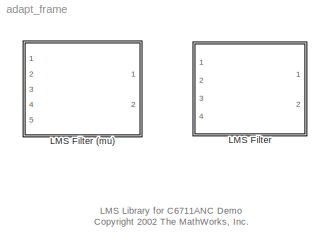
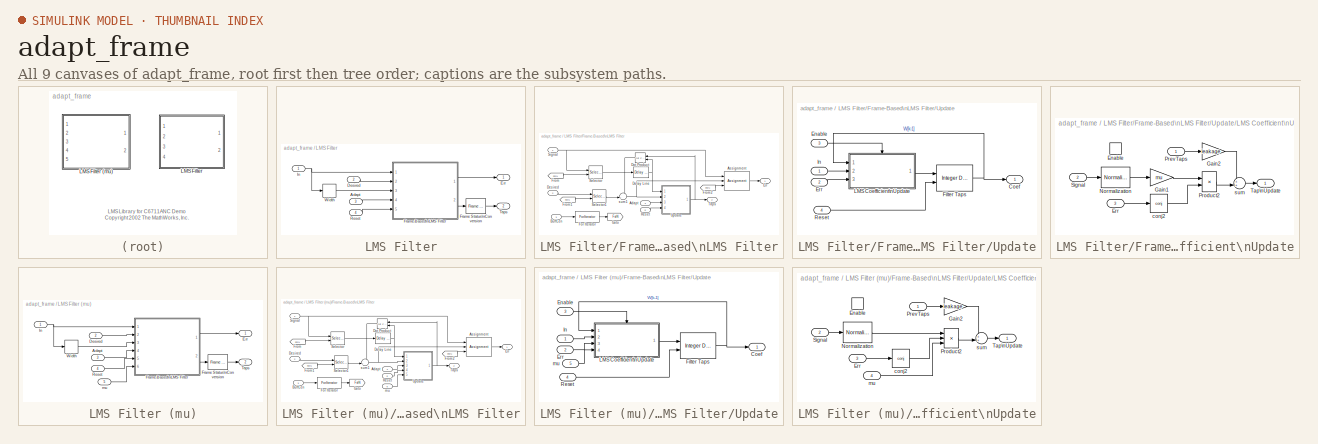
[diagram: thumbnail index - all 9 canvases of the model, root first then tree order]
MODEL adapt_frame
KIND library
BLOCK [SubSystem] LMS Filter
  MaskCallbackString = ||
  MaskDescription = Frame-based implementation of a normalized LMS filter.
  MaskDisplay = disp('nLMS\\nFrame')
  MaskEnableString = on,on,on
  MaskIconFrame = on
  MaskIconOpaque = off
  MaskIconRotate = none
  MaskIconUnits = autoscale
  MaskPromptString = Filter Length|Step Size|Leakage
  MaskStyleString = edit,edit,edit
  MaskToolTipString = on,on,on
  MaskTunableValueString = off,on,on
  MaskType = LMS Adaptive Filter
  MaskValueString = 32|0.2|1.0
  MaskVarAliasString = ,,
  MaskVariables = N=@1;mu=@2;leakage=@3;
  MaskVisibilityString = on,on,on
  Ports = [4, 2]
  TreatAsAtomicUnit = off
BLOCK [SubSystem] LMS Filter (mu)
  MaskCallbackString = |
  MaskDescription = Frame-based implementation of a normalized LMS filter.
  MaskDisplay = disp('nLMS\\nFrame')
  MaskEnableString = on,on
  MaskIconFrame = on
  MaskIconOpaque = off
  MaskIconRotate = none
  MaskIconUnits = autoscale
  MaskPromptString = Filter Length|Leakage
  MaskStyleString = edit,edit
  MaskToolTipString = on,on
  MaskTunableValueString = off,on
  MaskType = LMS Adaptive Filter
  MaskValueString = 32|1.0
  MaskVarAliasString = ,
  MaskVariables = N=@1;leakage=@2;
  MaskVisibilityString = on,on
  Ports = [5, 2]
  TreatAsAtomicUnit = off
BLOCK [Inport] LMS Filter (mu)/Adapt
  Port = 3
BLOCK [Inport] LMS Filter (mu)/Desired
  Port = 2
BLOCK [Outport] LMS Filter (mu)/Err
BLOCK [Reference] LMS Filter (mu)/Frame Status\nConversion  REF=dspsigattribs/Frame Status\nConversion
  Ports = [1, 1]
  SourceBlock = dspsigattribs/Frame Status\nConversion
  SourceType = Frame Status Conversion
  growRefPort = off
  outframe = Sample-based
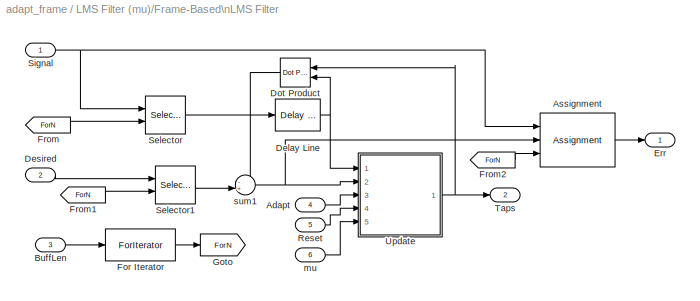
BLOCK [SubSystem] LMS Filter (mu)/Frame-Based\nLMS Filter
  Ports = [6, 2]
  TreatAsAtomicUnit = on
BLOCK [Inport] LMS Filter (mu)/Frame-Based\nLMS Filter/Adapt
  Port = 4
BLOCK [Assignment] LMS Filter (mu)/Frame-Based\nLMS Filter/Assignment
  ColumnSrc = External
  ElementSrc = External
  Ports = [3, 1]
  Rows = -1
BLOCK [Inport] LMS Filter (mu)/Frame-Based\nLMS Filter/BuffLen
  Port = 3
BLOCK [Reference] LMS Filter (mu)/Frame-Based\nLMS Filter/Delay Line  REF=dspbuff3/Delay Line
  Ports = [1, 1]
  SourceBlock = dspbuff3/Delay Line
  SourceType = Delay Line
  ic = 0
  siz = N
BLOCK [Inport] LMS Filter (mu)/Frame-Based\nLMS Filter/Desired
  Port = 2
BLOCK [Reference] LMS Filter (mu)/Frame-Based\nLMS Filter/Dot Product  REF=simulink/Math\nOperations/Dot Product
  Ports = [2, 1]
  SourceBlock = simulink/Math\nOperations/Dot Product
  SourceType = Dot Product
BLOCK [Outport] LMS Filter (mu)/Frame-Based\nLMS Filter/Err
BLOCK [ForIterator] LMS Filter (mu)/Frame-Based\nLMS Filter/For Iterator
  IterationSource = external
  NumIters = 4
  Ports = [1, 1]
BLOCK [From] LMS Filter (mu)/Frame-Based\nLMS Filter/From
  GotoTag = ForN
BLOCK [From] LMS Filter (mu)/Frame-Based\nLMS Filter/From1
  GotoTag = ForN
BLOCK [From] LMS Filter (mu)/Frame-Based\nLMS Filter/From2
  GotoTag = ForN
BLOCK [Goto] LMS Filter (mu)/Frame-Based\nLMS Filter/Goto
  GotoTag = ForN
  TagVisibility = local
BLOCK [Inport] LMS Filter (mu)/Frame-Based\nLMS Filter/Reset
  Port = 5
BLOCK [Selector] LMS Filter (mu)/Frame-Based\nLMS Filter/Selector
  ElementSrc = External
  Elements = [1 3]
  Ports = [2, 1]
BLOCK [Selector] LMS Filter (mu)/Frame-Based\nLMS Filter/Selector1
  ElementSrc = External
  Elements = [1 3]
  Ports = [2, 1]
BLOCK [Inport] LMS Filter (mu)/Frame-Based\nLMS Filter/Signal
BLOCK [Outport] LMS Filter (mu)/Frame-Based\nLMS Filter/Taps
  Port = 2
BLOCK [SubSystem] LMS Filter (mu)/Frame-Based\nLMS Filter/Update
  Ports = [5, 1]
  TreatAsAtomicUnit = off
BLOCK [Outport] LMS Filter (mu)/Frame-Based\nLMS Filter/Update/Coef
BLOCK [Inport] LMS Filter (mu)/Frame-Based\nLMS Filter/Update/Enable
  Port = 3
BLOCK [Inport] LMS Filter (mu)/Frame-Based\nLMS Filter/Update/Err
  Port = 2
BLOCK [Reference] LMS Filter (mu)/Frame-Based\nLMS Filter/Update/Filter Taps  REF=dspsigops/Integer Delay
  Ports = [2, 1]
  SourceBlock = dspsigops/Integer Delay
  SourceType = Integer Delay
  delay = N
  ic = 0
  reset_popup = Either edge
BLOCK [Inport] LMS Filter (mu)/Frame-Based\nLMS Filter/Update/In
BLOCK [SubSystem] LMS Filter (mu)/Frame-Based\nLMS Filter/Update/LMS Coefficient\nUpdate
  Ports = [4, 1, 1]
  TreatAsAtomicUnit = off
BLOCK [EnablePort] LMS Filter (mu)/Frame-Based\nLMS Filter/Update/LMS Coefficient\nUpdate/Enable
  Ports = []
BLOCK [Inport] LMS Filter (mu)/Frame-Based\nLMS Filter/Update/LMS Coefficient\nUpdate/Err
  Port = 3
BLOCK [Gain] LMS Filter (mu)/Frame-Based\nLMS Filter/Update/LMS Coefficient\nUpdate/Gain2
  Gain = leakage
BLOCK [Reference] LMS Filter (mu)/Frame-Based\nLMS Filter/Update/LMS Coefficient\nUpdate/Normalization  REF=dspmathops/Normalization
  Bias = 1e-10
  NormType = Squared 2-norm
  Ports = [1, 1]
  SourceBlock = dspmathops/Normalization
  SourceType = Normalization
BLOCK [Inport] LMS Filter (mu)/Frame-Based\nLMS Filter/Update/LMS Coefficient\nUpdate/PrevTaps
BLOCK [Product] LMS Filter (mu)/Frame-Based\nLMS Filter/Update/LMS Coefficient\nUpdate/Product2
  Inputs = 3
  Ports = [3, 1]
BLOCK [Inport] LMS Filter (mu)/Frame-Based\nLMS Filter/Update/LMS Coefficient\nUpdate/Signal
  Port = 2
BLOCK [Outport] LMS Filter (mu)/Frame-Based\nLMS Filter/Update/LMS Coefficient\nUpdate/Tap\nUpdate
  InitialOutput = 0
BLOCK [Math] LMS Filter (mu)/Frame-Based\nLMS Filter/Update/LMS Coefficient\nUpdate/conj2
  Operator = conj
  Ports = [1, 1]
BLOCK [Inport] LMS Filter (mu)/Frame-Based\nLMS Filter/Update/LMS Coefficient\nUpdate/mu
  Port = 4
BLOCK [Sum] LMS Filter (mu)/Frame-Based\nLMS Filter/Update/LMS Coefficient\nUpdate/sum
  IconShape = round
  Inputs = ++|
  Ports = [2, 1]
BLOCK [Inport] LMS Filter (mu)/Frame-Based\nLMS Filter/Update/Reset
  Port = 4
BLOCK [Inport] LMS Filter (mu)/Frame-Based\nLMS Filter/Update/mu
  Port = 5
BLOCK [Inport] LMS Filter (mu)/Frame-Based\nLMS Filter/mu
  Port = 6
BLOCK [Sum] LMS Filter (mu)/Frame-Based\nLMS Filter/sum1
  IconShape = round
  Inputs = -+|
  Ports = [2, 1]
BLOCK [Inport] LMS Filter (mu)/In
BLOCK [Inport] LMS Filter (mu)/Reset
  Port = 4
BLOCK [Outport] LMS Filter (mu)/Taps
  Port = 2
BLOCK [Width] LMS Filter (mu)/Width
  OutputDataTypeScalingMode = Inherit via back propagation
  ShowAdditionalParam = on
BLOCK [Inport] LMS Filter (mu)/mu
  Port = 5
BLOCK [Inport] LMS Filter/Adapt
  Port = 3
BLOCK [Inport] LMS Filter/Desired
  Port = 2
BLOCK [Outport] LMS Filter/Err
BLOCK [Reference] LMS Filter/Frame Status\nConversion  REF=dspsigattribs/Frame Status\nConversion
  Ports = [1, 1]
  SourceBlock = dspsigattribs/Frame Status\nConversion
  SourceType = Frame Status Conversion
  growRefPort = off
  outframe = Sample-based
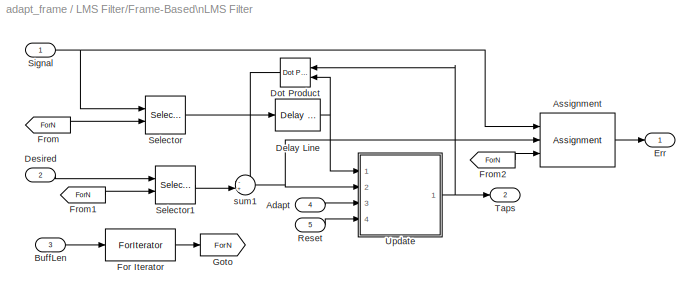
BLOCK [SubSystem] LMS Filter/Frame-Based\nLMS Filter
  Ports = [5, 2]
  TreatAsAtomicUnit = on
BLOCK [Inport] LMS Filter/Frame-Based\nLMS Filter/Adapt
  Port = 4
BLOCK [Assignment] LMS Filter/Frame-Based\nLMS Filter/Assignment
  ColumnSrc = External
  ElementSrc = External
  Ports = [3, 1]
  Rows = -1
BLOCK [Inport] LMS Filter/Frame-Based\nLMS Filter/BuffLen
  Port = 3
BLOCK [Reference] LMS Filter/Frame-Based\nLMS Filter/Delay Line  REF=dspbuff3/Delay Line
  Ports = [1, 1]
  SourceBlock = dspbuff3/Delay Line
  SourceType = Delay Line
  ic = 0
  siz = N
BLOCK [Inport] LMS Filter/Frame-Based\nLMS Filter/Desired
  Port = 2
BLOCK [Reference] LMS Filter/Frame-Based\nLMS Filter/Dot Product  REF=simulink/Math\nOperations/Dot Product
  Ports = [2, 1]
  SourceBlock = simulink/Math\nOperations/Dot Product
  SourceType = Dot Product
BLOCK [Outport] LMS Filter/Frame-Based\nLMS Filter/Err
BLOCK [ForIterator] LMS Filter/Frame-Based\nLMS Filter/For Iterator
  IterationSource = external
  NumIters = 4
  Ports = [1, 1]
BLOCK [From] LMS Filter/Frame-Based\nLMS Filter/From
  GotoTag = ForN
BLOCK [From] LMS Filter/Frame-Based\nLMS Filter/From1
  GotoTag = ForN
BLOCK [From] LMS Filter/Frame-Based\nLMS Filter/From2
  GotoTag = ForN
BLOCK [Goto] LMS Filter/Frame-Based\nLMS Filter/Goto
  GotoTag = ForN
  TagVisibility = local
BLOCK [Inport] LMS Filter/Frame-Based\nLMS Filter/Reset
  Port = 5
BLOCK [Selector] LMS Filter/Frame-Based\nLMS Filter/Selector
  ElementSrc = External
  Elements = [1 3]
  Ports = [2, 1]
BLOCK [Selector] LMS Filter/Frame-Based\nLMS Filter/Selector1
  ElementSrc = External
  Elements = [1 3]
  Ports = [2, 1]
BLOCK [Inport] LMS Filter/Frame-Based\nLMS Filter/Signal
BLOCK [Outport] LMS Filter/Frame-Based\nLMS Filter/Taps
  Port = 2
BLOCK [SubSystem] LMS Filter/Frame-Based\nLMS Filter/Update
  Ports = [4, 1]
  TreatAsAtomicUnit = off
BLOCK [Outport] LMS Filter/Frame-Based\nLMS Filter/Update/Coef
BLOCK [Inport] LMS Filter/Frame-Based\nLMS Filter/Update/Enable
  Port = 3
BLOCK [Inport] LMS Filter/Frame-Based\nLMS Filter/Update/Err
  Port = 2
BLOCK [Reference] LMS Filter/Frame-Based\nLMS Filter/Update/Filter Taps  REF=dspsigops/Integer Delay
  Ports = [2, 1]
  SourceBlock = dspsigops/Integer Delay
  SourceType = Integer Delay
  delay = N
  ic = 0
  reset_popup = Either edge
BLOCK [Inport] LMS Filter/Frame-Based\nLMS Filter/Update/In
BLOCK [SubSystem] LMS Filter/Frame-Based\nLMS Filter/Update/LMS Coefficient\nUpdate
  Ports = [3, 1, 1]
  TreatAsAtomicUnit = off
BLOCK [EnablePort] LMS Filter/Frame-Based\nLMS Filter/Update/LMS Coefficient\nUpdate/Enable
  Ports = []
BLOCK [Inport] LMS Filter/Frame-Based\nLMS Filter/Update/LMS Coefficient\nUpdate/Err
  Port = 3
BLOCK [Gain] LMS Filter/Frame-Based\nLMS Filter/Update/LMS Coefficient\nUpdate/Gain1
  Gain = mu
BLOCK [Gain] LMS Filter/Frame-Based\nLMS Filter/Update/LMS Coefficient\nUpdate/Gain2
  Gain = leakage
BLOCK [Reference] LMS Filter/Frame-Based\nLMS Filter/Update/LMS Coefficient\nUpdate/Normalization  REF=dspmathops/Normalization
  Bias = 1e-10
  NormType = Squared 2-norm
  Ports = [1, 1]
  SourceBlock = dspmathops/Normalization
  SourceType = Normalization
BLOCK [Inport] LMS Filter/Frame-Based\nLMS Filter/Update/LMS Coefficient\nUpdate/PrevTaps
BLOCK [Product] LMS Filter/Frame-Based\nLMS Filter/Update/LMS Coefficient\nUpdate/Product2
  Ports = [2, 1]
BLOCK [Inport] LMS Filter/Frame-Based\nLMS Filter/Update/LMS Coefficient\nUpdate/Signal
  Port = 2
BLOCK [Outport] LMS Filter/Frame-Based\nLMS Filter/Update/LMS Coefficient\nUpdate/Tap\nUpdate
  InitialOutput = 0
BLOCK [Math] LMS Filter/Frame-Based\nLMS Filter/Update/LMS Coefficient\nUpdate/conj2
  Operator = conj
  Ports = [1, 1]
BLOCK [Sum] LMS Filter/Frame-Based\nLMS Filter/Update/LMS Coefficient\nUpdate/sum
  IconShape = round
  Inputs = ++|
  Ports = [2, 1]
BLOCK [Inport] LMS Filter/Frame-Based\nLMS Filter/Update/Reset
  Port = 4
BLOCK [Sum] LMS Filter/Frame-Based\nLMS Filter/sum1
  IconShape = round
  Inputs = -+|
  Ports = [2, 1]
BLOCK [Inport] LMS Filter/In
BLOCK [Inport] LMS Filter/Reset
  Port = 4
BLOCK [Outport] LMS Filter/Taps
  Port = 2
BLOCK [Width] LMS Filter/Width
  OutputDataTypeScalingMode = Inherit via back propagation
  ShowAdditionalParam = on
ANNOTATION (root): LMS Library for C6711ANC Demo\nCopyright 2002 The MathWorks, Inc.
LINE LMS Filter (mu)/Adapt:1 -> LMS Filter (mu)/Frame-Based\nLMS Filter:4
LINE LMS Filter (mu)/Desired:1 -> LMS Filter (mu)/Frame-Based\nLMS Filter:2
LINE LMS Filter (mu)/Frame Status\nConversion:1 -> LMS Filter (mu)/Taps:1
LINE LMS Filter (mu)/Frame-Based\nLMS Filter/Adapt:1 -> LMS Filter (mu)/Frame-Based\nLMS Filter/Update:3
LINE LMS Filter (mu)/Frame-Based\nLMS Filter/Assignment:1 -> LMS Filter (mu)/Frame-Based\nLMS Filter/Err:1
LINE LMS Filter (mu)/Frame-Based\nLMS Filter/BuffLen:1 -> LMS Filter (mu)/Frame-Based\nLMS Filter/For Iterator:1
NET LMS Filter (mu)/Frame-Based\nLMS Filter/Delay Line:1 -> LMS Filter (mu)/Frame-Based\nLMS Filter/Dot Product:2, LMS Filter (mu)/Frame-Based\nLMS Filter/Update:1
LINE LMS Filter (mu)/Frame-Based\nLMS Filter/Desired:1 -> LMS Filter (mu)/Frame-Based\nLMS Filter/Selector1:1
LINE LMS Filter (mu)/Frame-Based\nLMS Filter/Dot Product:1 -> LMS Filter (mu)/Frame-Based\nLMS Filter/sum1:1
LINE LMS Filter (mu)/Frame-Based\nLMS Filter/For Iterator:1 -> LMS Filter (mu)/Frame-Based\nLMS Filter/Goto:1
LINE LMS Filter (mu)/Frame-Based\nLMS Filter/From1:1 -> LMS Filter (mu)/Frame-Based\nLMS Filter/Selector1:2
LINE LMS Filter (mu)/Frame-Based\nLMS Filter/From2:1 -> LMS Filter (mu)/Frame-Based\nLMS Filter/Assignment:3
LINE LMS Filter (mu)/Frame-Based\nLMS Filter/From:1 -> LMS Filter (mu)/Frame-Based\nLMS Filter/Selector:2
LINE LMS Filter (mu)/Frame-Based\nLMS Filter/Reset:1 -> LMS Filter (mu)/Frame-Based\nLMS Filter/Update:4
LINE LMS Filter (mu)/Frame-Based\nLMS Filter/Selector1:1 -> LMS Filter (mu)/Frame-Based\nLMS Filter/sum1:2
LINE LMS Filter (mu)/Frame-Based\nLMS Filter/Selector:1 -> LMS Filter (mu)/Frame-Based\nLMS Filter/Delay Line:1
NET LMS Filter (mu)/Frame-Based\nLMS Filter/Signal:1 -> LMS Filter (mu)/Frame-Based\nLMS Filter/Assignment:1, LMS Filter (mu)/Frame-Based\nLMS Filter/Selector:1
LINE LMS Filter (mu)/Frame-Based\nLMS Filter/Update/Enable:1 -> LMS Filter (mu)/Frame-Based\nLMS Filter/Update/LMS Coefficient\nUpdate:enable
LINE LMS Filter (mu)/Frame-Based\nLMS Filter/Update/Err:1 -> LMS Filter (mu)/Frame-Based\nLMS Filter/Update/LMS Coefficient\nUpdate:3
NET LMS Filter (mu)/Frame-Based\nLMS Filter/Update/Filter Taps:1 -> LMS Filter (mu)/Frame-Based\nLMS Filter/Update/Coef:1, LMS Filter (mu)/Frame-Based\nLMS Filter/Update/LMS Coefficient\nUpdate:1
LINE LMS Filter (mu)/Frame-Based\nLMS Filter/Update/In:1 -> LMS Filter (mu)/Frame-Based\nLMS Filter/Update/LMS Coefficient\nUpdate:2
LINE LMS Filter (mu)/Frame-Based\nLMS Filter/Update/LMS Coefficient\nUpdate/Err:1 -> LMS Filter (mu)/Frame-Based\nLMS Filter/Update/LMS Coefficient\nUpdate/conj2:1
LINE LMS Filter (mu)/Frame-Based\nLMS Filter/Update/LMS Coefficient\nUpdate/Gain2:1 -> LMS Filter (mu)/Frame-Based\nLMS Filter/Update/LMS Coefficient\nUpdate/sum:1
LINE LMS Filter (mu)/Frame-Based\nLMS Filter/Update/LMS Coefficient\nUpdate/Normalization:1 -> LMS Filter (mu)/Frame-Based\nLMS Filter/Update/LMS Coefficient\nUpdate/Product2:1
LINE LMS Filter (mu)/Frame-Based\nLMS Filter/Update/LMS Coefficient\nUpdate/PrevTaps:1 -> LMS Filter (mu)/Frame-Based\nLMS Filter/Update/LMS Coefficient\nUpdate/Gain2:1
LINE LMS Filter (mu)/Frame-Based\nLMS Filter/Update/LMS Coefficient\nUpdate/Product2:1 -> LMS Filter (mu)/Frame-Based\nLMS Filter/Update/LMS Coefficient\nUpdate/sum:2
LINE LMS Filter (mu)/Frame-Based\nLMS Filter/Update/LMS Coefficient\nUpdate/Signal:1 -> LMS Filter (mu)/Frame-Based\nLMS Filter/Update/LMS Coefficient\nUpdate/Normalization:1
LINE LMS Filter (mu)/Frame-Based\nLMS Filter/Update/LMS Coefficient\nUpdate/conj2:1 -> LMS Filter (mu)/Frame-Based\nLMS Filter/Update/LMS Coefficient\nUpdate/Product2:2
LINE LMS Filter (mu)/Frame-Based\nLMS Filter/Update/LMS Coefficient\nUpdate/mu:1 -> LMS Filter (mu)/Frame-Based\nLMS Filter/Update/LMS Coefficient\nUpdate/Product2:3
LINE LMS Filter (mu)/Frame-Based\nLMS Filter/Update/LMS Coefficient\nUpdate/sum:1 -> LMS Filter (mu)/Frame-Based\nLMS Filter/Update/LMS Coefficient\nUpdate/Tap\nUpdate:1
LINE LMS Filter (mu)/Frame-Based\nLMS Filter/Update/LMS Coefficient\nUpdate:1 -> LMS Filter (mu)/Frame-Based\nLMS Filter/Update/Filter Taps:1
LINE LMS Filter (mu)/Frame-Based\nLMS Filter/Update/Reset:1 -> LMS Filter (mu)/Frame-Based\nLMS Filter/Update/Filter Taps:2
LINE LMS Filter (mu)/Frame-Based\nLMS Filter/Update/mu:1 -> LMS Filter (mu)/Frame-Based\nLMS Filter/Update/LMS Coefficient\nUpdate:4
NET LMS Filter (mu)/Frame-Based\nLMS Filter/Update:1 -> LMS Filter (mu)/Frame-Based\nLMS Filter/Dot Product:1, LMS Filter (mu)/Frame-Based\nLMS Filter/Taps:1
LINE LMS Filter (mu)/Frame-Based\nLMS Filter/mu:1 -> LMS Filter (mu)/Frame-Based\nLMS Filter/Update:5
NET LMS Filter (mu)/Frame-Based\nLMS Filter/sum1:1 -> LMS Filter (mu)/Frame-Based\nLMS Filter/Assignment:2, LMS Filter (mu)/Frame-Based\nLMS Filter/Update:2
LINE LMS Filter (mu)/Frame-Based\nLMS Filter:1 -> LMS Filter (mu)/Err:1
LINE LMS Filter (mu)/Frame-Based\nLMS Filter:2 -> LMS Filter (mu)/Frame Status\nConversion:1
NET LMS Filter (mu)/In:1 -> LMS Filter (mu)/Frame-Based\nLMS Filter:1, LMS Filter (mu)/Width:1
LINE LMS Filter (mu)/Reset:1 -> LMS Filter (mu)/Frame-Based\nLMS Filter:5
LINE LMS Filter (mu)/Width:1 -> LMS Filter (mu)/Frame-Based\nLMS Filter:3
LINE LMS Filter (mu)/mu:1 -> LMS Filter (mu)/Frame-Based\nLMS Filter:6
LINE LMS Filter/Adapt:1 -> LMS Filter/Frame-Based\nLMS Filter:4
LINE LMS Filter/Desired:1 -> LMS Filter/Frame-Based\nLMS Filter:2
LINE LMS Filter/Frame Status\nConversion:1 -> LMS Filter/Taps:1
LINE LMS Filter/Frame-Based\nLMS Filter/Adapt:1 -> LMS Filter/Frame-Based\nLMS Filter/Update:3
LINE LMS Filter/Frame-Based\nLMS Filter/Assignment:1 -> LMS Filter/Frame-Based\nLMS Filter/Err:1
LINE LMS Filter/Frame-Based\nLMS Filter/BuffLen:1 -> LMS Filter/Frame-Based\nLMS Filter/For Iterator:1
NET LMS Filter/Frame-Based\nLMS Filter/Delay Line:1 -> LMS Filter/Frame-Based\nLMS Filter/Dot Product:2, LMS Filter/Frame-Based\nLMS Filter/Update:1
LINE LMS Filter/Frame-Based\nLMS Filter/Desired:1 -> LMS Filter/Frame-Based\nLMS Filter/Selector1:1
LINE LMS Filter/Frame-Based\nLMS Filter/Dot Product:1 -> LMS Filter/Frame-Based\nLMS Filter/sum1:1
LINE LMS Filter/Frame-Based\nLMS Filter/For Iterator:1 -> LMS Filter/Frame-Based\nLMS Filter/Goto:1
LINE LMS Filter/Frame-Based\nLMS Filter/From1:1 -> LMS Filter/Frame-Based\nLMS Filter/Selector1:2
LINE LMS Filter/Frame-Based\nLMS Filter/From2:1 -> LMS Filter/Frame-Based\nLMS Filter/Assignment:3
LINE LMS Filter/Frame-Based\nLMS Filter/From:1 -> LMS Filter/Frame-Based\nLMS Filter/Selector:2
LINE LMS Filter/Frame-Based\nLMS Filter/Reset:1 -> LMS Filter/Frame-Based\nLMS Filter/Update:4
LINE LMS Filter/Frame-Based\nLMS Filter/Selector1:1 -> LMS Filter/Frame-Based\nLMS Filter/sum1:2
LINE LMS Filter/Frame-Based\nLMS Filter/Selector:1 -> LMS Filter/Frame-Based\nLMS Filter/Delay Line:1
NET LMS Filter/Frame-Based\nLMS Filter/Signal:1 -> LMS Filter/Frame-Based\nLMS Filter/Assignment:1, LMS Filter/Frame-Based\nLMS Filter/Selector:1
LINE LMS Filter/Frame-Based\nLMS Filter/Update/Enable:1 -> LMS Filter/Frame-Based\nLMS Filter/Update/LMS Coefficient\nUpdate:enable
LINE LMS Filter/Frame-Based\nLMS Filter/Update/Err:1 -> LMS Filter/Frame-Based\nLMS Filter/Update/LMS Coefficient\nUpdate:3
NET LMS Filter/Frame-Based\nLMS Filter/Update/Filter Taps:1 -> LMS Filter/Frame-Based\nLMS Filter/Update/Coef:1, LMS Filter/Frame-Based\nLMS Filter/Update/LMS Coefficient\nUpdate:1
LINE LMS Filter/Frame-Based\nLMS Filter/Update/In:1 -> LMS Filter/Frame-Based\nLMS Filter/Update/LMS Coefficient\nUpdate:2
LINE LMS Filter/Frame-Based\nLMS Filter/Update/LMS Coefficient\nUpdate/Err:1 -> LMS Filter/Frame-Based\nLMS Filter/Update/LMS Coefficient\nUpdate/conj2:1
LINE LMS Filter/Frame-Based\nLMS Filter/Update/LMS Coefficient\nUpdate/Gain1:1 -> LMS Filter/Frame-Based\nLMS Filter/Update/LMS Coefficient\nUpdate/Product2:1
LINE LMS Filter/Frame-Based\nLMS Filter/Update/LMS Coefficient\nUpdate/Gain2:1 -> LMS Filter/Frame-Based\nLMS Filter/Update/LMS Coefficient\nUpdate/sum:1
LINE LMS Filter/Frame-Based\nLMS Filter/Update/LMS Coefficient\nUpdate/Normalization:1 -> LMS Filter/Frame-Based\nLMS Filter/Update/LMS Coefficient\nUpdate/Gain1:1
LINE LMS Filter/Frame-Based\nLMS Filter/Update/LMS Coefficient\nUpdate/PrevTaps:1 -> LMS Filter/Frame-Based\nLMS Filter/Update/LMS Coefficient\nUpdate/Gain2:1
LINE LMS Filter/Frame-Based\nLMS Filter/Update/LMS Coefficient\nUpdate/Product2:1 -> LMS Filter/Frame-Based\nLMS Filter/Update/LMS Coefficient\nUpdate/sum:2
LINE LMS Filter/Frame-Based\nLMS Filter/Update/LMS Coefficient\nUpdate/Signal:1 -> LMS Filter/Frame-Based\nLMS Filter/Update/LMS Coefficient\nUpdate/Normalization:1
LINE LMS Filter/Frame-Based\nLMS Filter/Update/LMS Coefficient\nUpdate/conj2:1 -> LMS Filter/Frame-Based\nLMS Filter/Update/LMS Coefficient\nUpdate/Product2:2
LINE LMS Filter/Frame-Based\nLMS Filter/Update/LMS Coefficient\nUpdate/sum:1 -> LMS Filter/Frame-Based\nLMS Filter/Update/LMS Coefficient\nUpdate/Tap\nUpdate:1
LINE LMS Filter/Frame-Based\nLMS Filter/Update/LMS Coefficient\nUpdate:1 -> LMS Filter/Frame-Based\nLMS Filter/Update/Filter Taps:1
LINE LMS Filter/Frame-Based\nLMS Filter/Update/Reset:1 -> LMS Filter/Frame-Based\nLMS Filter/Update/Filter Taps:2
NET LMS Filter/Frame-Based\nLMS Filter/Update:1 -> LMS Filter/Frame-Based\nLMS Filter/Dot Product:1, LMS Filter/Frame-Based\nLMS Filter/Taps:1
NET LMS Filter/Frame-Based\nLMS Filter/sum1:1 -> LMS Filter/Frame-Based\nLMS Filter/Assignment:2, LMS Filter/Frame-Based\nLMS Filter/Update:2
LINE LMS Filter/Frame-Based\nLMS Filter:1 -> LMS Filter/Err:1
LINE LMS Filter/Frame-Based\nLMS Filter:2 -> LMS Filter/Frame Status\nConversion:1
NET LMS Filter/In:1 -> LMS Filter/Frame-Based\nLMS Filter:1, LMS Filter/Width:1
LINE LMS Filter/Reset:1 -> LMS Filter/Frame-Based\nLMS Filter:5
LINE LMS Filter/Width:1 -> LMS Filter/Frame-Based\nLMS Filter:3
note: NET lines group one-source signal fan-out (src -> all destinations, sorted); 1:1 wires keep LINE
